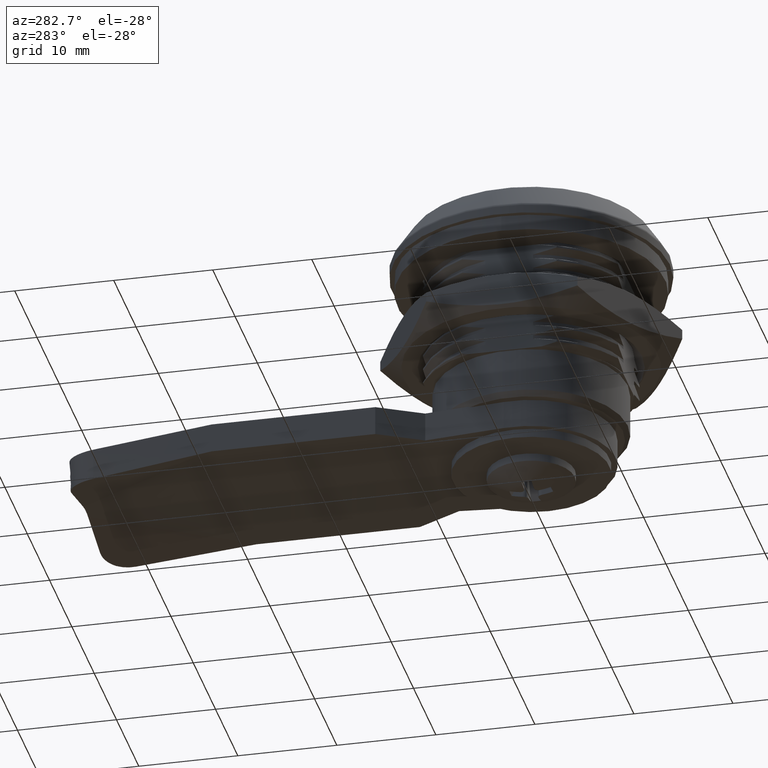
[diagram: clean part render]
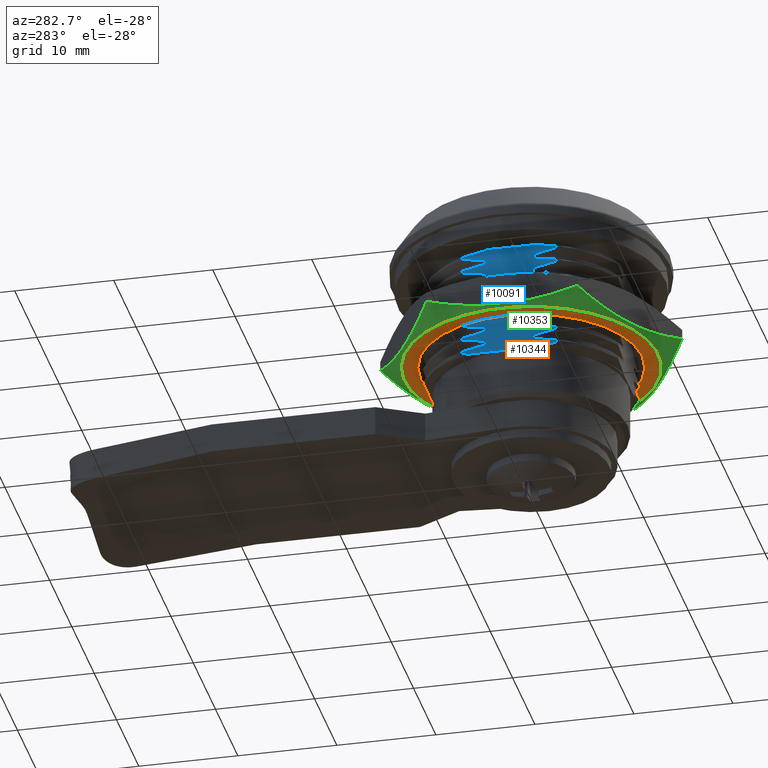
[diagram: same view with three faces highlighted in distinct colors, each labeled with its STEP entity id]
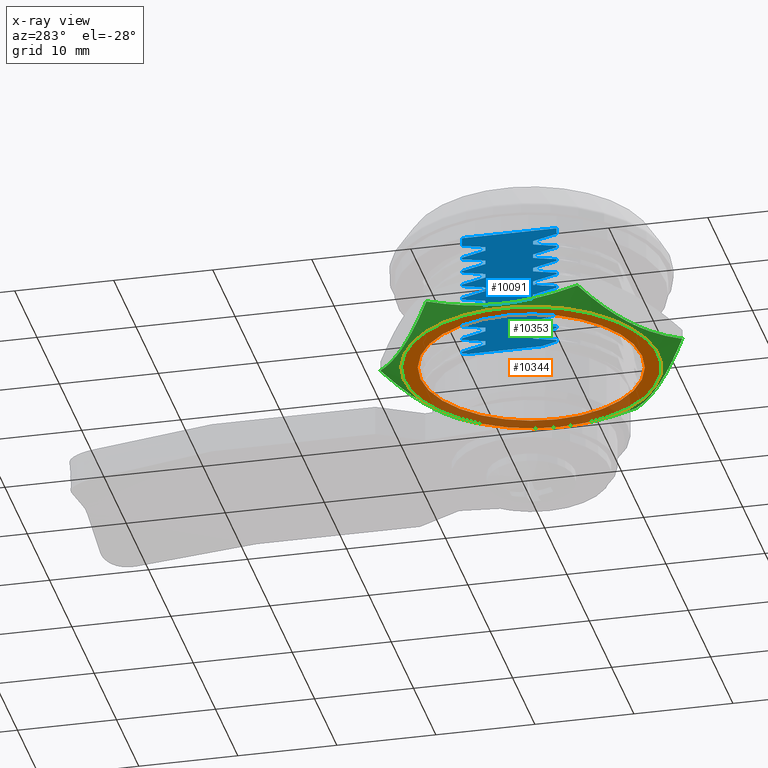
[diagram: x-ray of the same camera — body ghosted, the three highlighted faces saturated]
A machine part, auxiliary view with three faces highlighted in distinct colors.
The next image is the same camera in x-ray (body ghosted, the three faces saturated) — at least one of them is partly hidden behind the body in this view.
Their STEP definitions:

[orange] entity #10344 — the highlighted planar face has unit normal (0, 0, -1).
#471=PLANE('',#10956);
#2656=FACE_BOUND('',#3600,.T.);
#2967=FACE_OUTER_BOUND('',#3599,.T.);
#3599=EDGE_LOOP('',(#8252));
#3600=EDGE_LOOP('',(#8253));
#4028=CIRCLE('',#10953,11.188);
#4030=CIRCLE('',#10957,12.81);
#4706=VERTEX_POINT('',#40143);
#4708=VERTEX_POINT('',#40149);
#5974=EDGE_CURVE('',#4706,#4706,#4028,.T.);
#5976=EDGE_CURVE('',#4708,#4708,#4030,.T.);
#8252=ORIENTED_EDGE('',*,*,#5976,.F.);
#8253=ORIENTED_EDGE('',*,*,#5974,.F.);
#10344=ADVANCED_FACE('',(#2967,#2656),#471,.T.);
#10953=AXIS2_PLACEMENT_3D('',#40144,#12341,#12342);
#10956=AXIS2_PLACEMENT_3D('',#40148,#12347,#12348);
#10957=AXIS2_PLACEMENT_3D('',#40150,#12349,#12350);
#12341=DIRECTION('center_axis',(0.,0.,-1.));
#12342=DIRECTION('ref_axis',(1.,0.,0.));
#12347=DIRECTION('center_axis',(0.,0.,-1.));
#12348=DIRECTION('ref_axis',(-1.,0.,0.));
#12349=DIRECTION('center_axis',(0.,0.,1.));
#12350=DIRECTION('ref_axis',(-1.,0.,0.));
#40143=CARTESIAN_POINT('',(-11.188,1.37013483888606E-15,0.));
#40144=CARTESIAN_POINT('Origin',(0.,0.,0.));
#40148=CARTESIAN_POINT('Origin',(0.,0.,0.));
#40149=CARTESIAN_POINT('',(12.81,1.56877254970776E-15,0.));
#40150=CARTESIAN_POINT('Origin',(0.,0.,0.));

[blue] entity #10091 — the highlighted planar face has unit normal (1, 0, -0).
#398=PLANE('',#10719);
#669=LINE('',#13934,#1504);
#729=LINE('',#14476,#1564);
#730=LINE('',#14490,#1565);
#731=LINE('',#14504,#1566);
#732=LINE('',#14518,#1567);
#733=LINE('',#14532,#1568);
#734=LINE('',#14546,#1569);
#735=LINE('',#14560,#1570);
#736=LINE('',#14574,#1571);
#737=LINE('',#14588,#1572);
#738=LINE('',#14604,#1573);
#739=LINE('',#14621,#1574);
#740=LINE('',#14638,#1575);
#741=LINE('',#14655,#1576);
#742=LINE('',#14672,#1577);
#743=LINE('',#14689,#1578);
#744=LINE('',#14706,#1579);
#745=LINE('',#14723,#1580);
#746=LINE('',#14732,#1581);
#747=LINE('',#14742,#1582);
#748=LINE('',#14752,#1583);
#749=LINE('',#14762,#1584);
#750=LINE('',#14772,#1585);
#751=LINE('',#14782,#1586);
#752=LINE('',#14792,#1587);
#753=LINE('',#14802,#1588);
#754=LINE('',#14812,#1589);
#755=LINE('',#14822,#1590);
#756=LINE('',#14832,#1591);
#757=LINE('',#14842,#1592);
#758=LINE('',#14852,#1593);
#759=LINE('',#14862,#1594);
#760=LINE('',#14872,#1595);
#761=LINE('',#14882,#1596);
#762=LINE('',#14892,#1597);
#763=LINE('',#14898,#1598);
#1504=VECTOR('',#11480,9.56660859448112);
#1564=VECTOR('',#11600,0.641713029902784);
#1565=VECTOR('',#11603,0.187500004096779);
#1566=VECTOR('',#11606,0.187500004096779);
#1567=VECTOR('',#11609,0.187500004096779);
#1568=VECTOR('',#11612,0.187500004096793);
#1569=VECTOR('',#11615,0.187500004096799);
#1570=VECTOR('',#11618,0.187500004096793);
#1571=VECTOR('',#11621,0.187500004096803);
#1572=VECTOR('',#11624,0.187500004096799);
#1573=VECTOR('',#11627,0.375000000000001);
#1574=VECTOR('',#11628,0.375000000000001);
#1575=VECTOR('',#11629,0.374999999999999);
#1576=VECTOR('',#11630,0.375000000000001);
#1577=VECTOR('',#11631,0.375000000000019);
#1578=VECTOR('',#11632,0.375000000000022);
#1579=VECTOR('',#11633,0.37500000000002);
#1580=VECTOR('',#11634,0.37500000000002);
#1581=VECTOR('',#11635,0.858286970097223);
#1582=VECTOR('',#11636,0.37499999999998);
#1583=VECTOR('',#11637,0.187500004096779);
#1584=VECTOR('',#11638,0.37499999999998);
#1585=VECTOR('',#11639,0.18750000409678);
#1586=VECTOR('',#11640,0.374999999999991);
#1587=VECTOR('',#11641,0.18750000409678);
#1588=VECTOR('',#11642,0.374999999999961);
#1589=VECTOR('',#11643,0.187500004096799);
#1590=VECTOR('',#11644,0.375000000000001);
#1591=VECTOR('',#11645,0.187500004096799);
#1592=VECTOR('',#11646,0.374999999999999);
#1593=VECTOR('',#11647,0.187500004096799);
#1594=VECTOR('',#11648,0.375000000000001);
#1595=VECTOR('',#11649,0.187500004096799);
#1596=VECTOR('',#11650,0.374999999999999);
#1597=VECTOR('',#11651,0.187500004096797);
#1598=VECTOR('',#11652,7.41977477942891);
#2372=B_SPLINE_CURVE_WITH_KNOTS('',3,(#14591,#14592,#14593,#14594),
 .UNSPECIFIED.,.F.,.F.,(4,4),(1.73472347597681E-18,0.00153724010418307),
 .UNSPECIFIED.);
#2373=B_SPLINE_CURVE_WITH_KNOTS('',3,(#14596,#14597,#14598,#14599,#14600,
#14601,#14602),.UNSPECIFIED.,.F.,.F.,(4,3,4),(-0.242170769104373,-0.121071173947114,
0.),.UNSPECIFIED.);
#2374=B_SPLINE_CURVE_WITH_KNOTS('',3,(#14605,#14606,#14607,#14608,#14609,
#14610,#14611),.UNSPECIFIED.,.F.,.F.,(4,3,4),(-0.244169262026697,-0.122096874874192,
0.),.UNSPECIFIED.);
#2375=B_SPLINE_CURVE_WITH_KNOTS('',3,(#14613,#14614,#14615,#14616,#14617,
#14618,#14619),.UNSPECIFIED.,.F.,.F.,(4,3,4),(-0.242170769104581,-0.121071173947146,
0.),.UNSPECIFIED.);
#2376=B_SPLINE_CURVE_WITH_KNOTS('',3,(#14622,#14623,#14624,#14625,#14626,
#14627,#14628),.UNSPECIFIED.,.F.,.F.,(4,3,4),(-0.244169262059696,-0.122096895773137,
0.),.UNSPECIFIED.);
#2377=B_SPLINE_CURVE_WITH_KNOTS('',3,(#14630,#14631,#14632,#14633,#14634,
#14635,#14636),.UNSPECIFIED.,.F.,.F.,(4,3,4),(-0.242170769104543,-0.121071173947128,
0.),.UNSPECIFIED.);
#2378=B_SPLINE_CURVE_WITH_KNOTS('',3,(#14639,#14640,#14641,#14642,#14643,
#14644,#14645),.UNSPECIFIED.,.F.,.F.,(4,3,4),(-0.244169262059747,-0.12209689577315,
0.),.UNSPECIFIED.);
#2379=B_SPLINE_CURVE_WITH_KNOTS('',3,(#14647,#14648,#14649,#14650,#14651,
#14652,#14653),.UNSPECIFIED.,.F.,.F.,(4,3,4),(-0.242170769104616,-0.121071173947198,
0.),.UNSPECIFIED.);
#2380=B_SPLINE_CURVE_WITH_KNOTS('',3,(#14656,#14657,#14658,#14659,#14660,
#14661,#14662),.UNSPECIFIED.,.F.,.F.,(4,3,4),(-0.244169262059829,-0.122096895773156,
0.),.UNSPECIFIED.);
#2381=B_SPLINE_CURVE_WITH_KNOTS('',3,(#14664,#14665,#14666,#14667,#14668,
#14669,#14670),.UNSPECIFIED.,.F.,.F.,(4,3,4),(-0.242170769104375,-0.121071173947079,
0.),.UNSPECIFIED.);
#2382=B_SPLINE_CURVE_WITH_KNOTS('',3,(#14673,#14674,#14675,#14676,#14677,
#14678,#14679),.UNSPECIFIED.,.F.,.F.,(4,3,4),(-0.244169262059651,-0.122096895773118,
0.),.UNSPECIFIED.);
#2383=B_SPLINE_CURVE_WITH_KNOTS('',3,(#14681,#14682,#14683,#14684,#14685,
#14686,#14687),.UNSPECIFIED.,.F.,.F.,(4,3,4),(-0.242170769104348,-0.121071173947077,
0.),.UNSPECIFIED.);
#2384=B_SPLINE_CURVE_WITH_KNOTS('',3,(#14690,#14691,#14692,#14693,#14694,
#14695,#14696),.UNSPECIFIED.,.F.,.F.,(4,3,4),(-0.244169262059693,-0.122096895773128,
0.),.UNSPECIFIED.);
#2385=B_SPLINE_CURVE_WITH_KNOTS('',3,(#14698,#14699,#14700,#14701,#14702,
#14703,#14704),.UNSPECIFIED.,.F.,.F.,(4,3,4),(-0.2421707691045,-0.121071173947145,
0.),.UNSPECIFIED.);
#2386=B_SPLINE_CURVE_WITH_KNOTS('',3,(#14707,#14708,#14709,#14710,#14711,
#14712,#14713),.UNSPECIFIED.,.F.,.F.,(4,3,4),(-0.244169262059674,-0.122096895773127,
0.),.UNSPECIFIED.);
#2387=B_SPLINE_CURVE_WITH_KNOTS('',3,(#14715,#14716,#14717,#14718,#14719,
#14720,#14721),.UNSPECIFIED.,.F.,.F.,(4,3,4),(-0.242170769104373,-0.121071173947092,
0.),.UNSPECIFIED.);
#2388=B_SPLINE_CURVE_WITH_KNOTS('',3,(#14724,#14725,#14726,#14727,#14728,
#14729,#14730),.UNSPECIFIED.,.F.,.F.,(4,3,4),(-0.244169262059677,-0.122096895773128,
0.),.UNSPECIFIED.);
#2389=B_SPLINE_CURVE_WITH_KNOTS('',3,(#14734,#14735,#14736,#14737,#14738,
#14739,#14740),.UNSPECIFIED.,.F.,.F.,(4,3,4),(-0.24217076910398,-0.121071173947013,
0.),.UNSPECIFIED.);
#2390=B_SPLINE_CURVE_WITH_KNOTS('',3,(#14744,#14745,#14746,#14747,#14748,
#14749,#14750),.UNSPECIFIED.,.F.,.F.,(4,3,4),(-0.244169262057423,-0.12209689577265,
0.),.UNSPECIFIED.);
#2391=B_SPLINE_CURVE_WITH_KNOTS('',3,(#14754,#14755,#14756,#14757,#14758,
#14759,#14760),.UNSPECIFIED.,.F.,.F.,(4,3,4),(-0.24217076910369,-0.121071173946892,
0.),.UNSPECIFIED.);
#2392=B_SPLINE_CURVE_WITH_KNOTS('',3,(#14764,#14765,#14766,#14767,#14768,
#14769,#14770),.UNSPECIFIED.,.F.,.F.,(4,3,4),(-0.244169262057445,-0.122096895772645,
0.),.UNSPECIFIED.);
#2393=B_SPLINE_CURVE_WITH_KNOTS('',3,(#14774,#14775,#14776,#14777,#14778,
#14779,#14780),.UNSPECIFIED.,.F.,.F.,(4,3,4),(-0.242170769103723,-0.121071173946875,
0.),.UNSPECIFIED.);
#2394=B_SPLINE_CURVE_WITH_KNOTS('',3,(#14784,#14785,#14786,#14787,#14788,
#14789,#14790),.UNSPECIFIED.,.F.,.F.,(4,3,4),(-0.244169262057482,-0.122096895772657,
0.),.UNSPECIFIED.);
#2395=B_SPLINE_CURVE_WITH_KNOTS('',3,(#14794,#14795,#14796,#14797,#14798,
#14799,#14800),.UNSPECIFIED.,.F.,.F.,(4,3,4),(-0.242170769103875,-0.121071173946972,
0.),.UNSPECIFIED.);
#2396=B_SPLINE_CURVE_WITH_KNOTS('',3,(#14804,#14805,#14806,#14807,#14808,
#14809,#14810),.UNSPECIFIED.,.F.,.F.,(4,3,4),(-0.244169262057484,-0.122096895772655,
0.),.UNSPECIFIED.);
#2397=B_SPLINE_CURVE_WITH_KNOTS('',3,(#14814,#14815,#14816,#14817,#14818,
#14819,#14820),.UNSPECIFIED.,.F.,.F.,(4,3,4),(-0.242170769103869,-0.121071173946978,
0.),.UNSPECIFIED.);
#2398=B_SPLINE_CURVE_WITH_KNOTS('',3,(#14824,#14825,#14826,#14827,#14828,
#14829,#14830),.UNSPECIFIED.,.F.,.F.,(4,3,4),(-0.244169262057376,-0.122096895772629,
0.),.UNSPECIFIED.);
#2399=B_SPLINE_CURVE_WITH_KNOTS('',3,(#14834,#14835,#14836,#14837,#14838,
#14839,#14840),.UNSPECIFIED.,.F.,.F.,(4,3,4),(-0.24217076910356,-0.12107117394705,
0.),.UNSPECIFIED.);
#2400=B_SPLINE_CURVE_WITH_KNOTS('',3,(#14844,#14845,#14846,#14847,#14848,
#14849,#14850),.UNSPECIFIED.,.F.,.F.,(4,3,4),(-0.2441692620574,-0.122096895772644,
0.),.UNSPECIFIED.);
#2401=B_SPLINE_CURVE_WITH_KNOTS('',3,(#14854,#14855,#14856,#14857,#14858,
#14859,#14860),.UNSPECIFIED.,.F.,.F.,(4,3,4),(-0.242170769103588,-0.121071173947072,
0.),.UNSPECIFIED.);
#2402=B_SPLINE_CURVE_WITH_KNOTS('',3,(#14864,#14865,#14866,#14867,#14868,
#14869,#14870),.UNSPECIFIED.,.F.,.F.,(4,3,4),(-0.244169262057437,-0.122096895772653,
0.),.UNSPECIFIED.);
#2403=B_SPLINE_CURVE_WITH_KNOTS('',3,(#14874,#14875,#14876,#14877,#14878,
#14879,#14880),.UNSPECIFIED.,.F.,.F.,(4,3,4),(-0.242170769104174,-0.121071173947134,
0.),.UNSPECIFIED.);
#2404=B_SPLINE_CURVE_WITH_KNOTS('',3,(#14884,#14885,#14886,#14887,#14888,
#14889,#14890),.UNSPECIFIED.,.F.,.F.,(4,3,4),(-0.244169262057258,-0.12209689577262,
0.),.UNSPECIFIED.);
#2405=B_SPLINE_CURVE_WITH_KNOTS('',3,(#14894,#14895,#14896,#14897),
 .UNSPECIFIED.,.F.,.F.,(4,4),(4.33680868994202E-18,0.000667363655533002),
 .UNSPECIFIED.);
#2714=FACE_OUTER_BOUND('',#3310,.T.);
#3310=EDGE_LOOP('',(#7004,#7005,#7006,#7007,#7008,#7009,#7010,#7011,#7012,
#7013,#7014,#7015,#7016,#7017,#7018,#7019,#7020,#7021,#7022,#7023,#7024,
#7025,#7026,#7027,#7028,#7029,#7030,#7031,#7032,#7033,#7034,#7035,#7036,
#7037,#7038,#7039,#7040,#7041,#7042,#7043,#7044,#7045,#7046,#7047,#7048,
#7049,#7050,#7051,#7052,#7053,#7054,#7055,#7056,#7057,#7058,#7059,#7060,
#7061,#7062,#7063,#7064,#7065,#7066,#7067,#7068,#7069,#7070,#7071,#7072,
#7073));
#4247=VERTEX_POINT('',#13931);
#4248=VERTEX_POINT('',#13933);
#4362=VERTEX_POINT('',#14470);
#4363=VERTEX_POINT('',#14478);
#4364=VERTEX_POINT('',#14484);
#4365=VERTEX_POINT('',#14492);
#4366=VERTEX_POINT('',#14498);
#4367=VERTEX_POINT('',#14506);
#4368=VERTEX_POINT('',#14512);
#4369=VERTEX_POINT('',#14520);
#4370=VERTEX_POINT('',#14526);
#4371=VERTEX_POINT('',#14534);
#4372=VERTEX_POINT('',#14540);
#4373=VERTEX_POINT('',#14548);
#4374=VERTEX_POINT('',#14554);
#4375=VERTEX_POINT('',#14562);
#4376=VERTEX_POINT('',#14568);
#4377=VERTEX_POINT('',#14576);
#4378=VERTEX_POINT('',#14582);
#4379=VERTEX_POINT('',#14590);
#4380=VERTEX_POINT('',#14595);
#4381=VERTEX_POINT('',#14603);
#4382=VERTEX_POINT('',#14612);
#4383=VERTEX_POINT('',#14620);
#4384=VERTEX_POINT('',#14629);
#4385=VERTEX_POINT('',#14637);
#4386=VERTEX_POINT('',#14646);
#4387=VERTEX_POINT('',#14654);
#4388=VERTEX_POINT('',#14663);
#4389=VERTEX_POINT('',#14671);
#4390=VERTEX_POINT('',#14680);
#4391=VERTEX_POINT('',#14688);
#4392=VERTEX_POINT('',#14697);
#4393=VERTEX_POINT('',#14705);
#4394=VERTEX_POINT('',#14714);
#4395=VERTEX_POINT('',#14722);
#4396=VERTEX_POINT('',#14731);
#4397=VERTEX_POINT('',#14733);
#4398=VERTEX_POINT('',#14741);
#4399=VERTEX_POINT('',#14743);
#4400=VERTEX_POINT('',#14751);
#4401=VERTEX_POINT('',#14753);
#4402=VERTEX_POINT('',#14761);
#4403=VERTEX_POINT('',#14763);
#4404=VERTEX_POINT('',#14771);
#4405=VERTEX_POINT('',#14773);
#4406=VERTEX_POINT('',#14781);
#4407=VERTEX_POINT('',#14783);
#4408=VERTEX_POINT('',#14791);
#4409=VERTEX_POINT('',#14793);
#4410=VERTEX_POINT('',#14801);
#4411=VERTEX_POINT('',#14803);
#4412=VERTEX_POINT('',#14811);
#4413=VERTEX_POINT('',#14813);
#4414=VERTEX_POINT('',#14821);
#4415=VERTEX_POINT('',#14823);
#4416=VERTEX_POINT('',#14831);
#4417=VERTEX_POINT('',#14833);
#4418=VERTEX_POINT('',#14841);
#4419=VERTEX_POINT('',#14843);
#4420=VERTEX_POINT('',#14851);
#4421=VERTEX_POINT('',#14853);
#4422=VERTEX_POINT('',#14861);
#4423=VERTEX_POINT('',#14863);
#4424=VERTEX_POINT('',#14871);
#4425=VERTEX_POINT('',#14873);
#4426=VERTEX_POINT('',#14881);
#4427=VERTEX_POINT('',#14883);
#4428=VERTEX_POINT('',#14891);
#4429=VERTEX_POINT('',#14893);
#5276=EDGE_CURVE('',#4248,#4247,#669,.T.);
#5404=EDGE_CURVE('',#4362,#4248,#729,.T.);
#5407=EDGE_CURVE('',#4363,#4364,#730,.T.);
#5410=EDGE_CURVE('',#4365,#4366,#731,.T.);
#5413=EDGE_CURVE('',#4367,#4368,#732,.T.);
#5416=EDGE_CURVE('',#4369,#4370,#733,.T.);
#5419=EDGE_CURVE('',#4371,#4372,#734,.T.);
#5422=EDGE_CURVE('',#4373,#4374,#735,.T.);
#5425=EDGE_CURVE('',#4375,#4376,#736,.T.);
#5428=EDGE_CURVE('',#4377,#4378,#737,.T.);
#5429=EDGE_CURVE('',#4377,#4379,#2372,.T.);
#5430=EDGE_CURVE('',#4380,#4378,#2373,.T.);
#5431=EDGE_CURVE('',#4381,#4380,#738,.T.);
#5432=EDGE_CURVE('',#4375,#4381,#2374,.T.);
#5433=EDGE_CURVE('',#4382,#4376,#2375,.T.);
#5434=EDGE_CURVE('',#4383,#4382,#739,.T.);
#5435=EDGE_CURVE('',#4373,#4383,#2376,.T.);
#5436=EDGE_CURVE('',#4384,#4374,#2377,.T.);
#5437=EDGE_CURVE('',#4385,#4384,#740,.T.);
#5438=EDGE_CURVE('',#4371,#4385,#2378,.T.);
#5439=EDGE_CURVE('',#4386,#4372,#2379,.T.);
#5440=EDGE_CURVE('',#4387,#4386,#741,.T.);
#5441=EDGE_CURVE('',#4369,#4387,#2380,.T.);
#5442=EDGE_CURVE('',#4388,#4370,#2381,.T.);
#5443=EDGE_CURVE('',#4389,#4388,#742,.T.);
#5444=EDGE_CURVE('',#4367,#4389,#2382,.T.);
#5445=EDGE_CURVE('',#4390,#4368,#2383,.T.);
#5446=EDGE_CURVE('',#4391,#4390,#743,.T.);
#5447=EDGE_CURVE('',#4365,#4391,#2384,.T.);
#5448=EDGE_CURVE('',#4392,#4366,#2385,.T.);
#5449=EDGE_CURVE('',#4393,#4392,#744,.T.);
#5450=EDGE_CURVE('',#4363,#4393,#2386,.T.);
#5451=EDGE_CURVE('',#4394,#4364,#2387,.T.);
#5452=EDGE_CURVE('',#4395,#4394,#745,.T.);
#5453=EDGE_CURVE('',#4362,#4395,#2388,.T.);
#5454=EDGE_CURVE('',#4396,#4247,#746,.T.);
#5455=EDGE_CURVE('',#4397,#4396,#2389,.T.);
#5456=EDGE_CURVE('',#4398,#4397,#747,.T.);
#5457=EDGE_CURVE('',#4399,#4398,#2390,.T.);
#5458=EDGE_CURVE('',#4400,#4399,#748,.T.);
#5459=EDGE_CURVE('',#4401,#4400,#2391,.T.);
#5460=EDGE_CURVE('',#4402,#4401,#749,.T.);
#5461=EDGE_CURVE('',#4403,#4402,#2392,.T.);
#5462=EDGE_CURVE('',#4404,#4403,#750,.T.);
#5463=EDGE_CURVE('',#4405,#4404,#2393,.T.);
#5464=EDGE_CURVE('',#4406,#4405,#751,.T.);
#5465=EDGE_CURVE('',#4407,#4406,#2394,.T.);
#5466=EDGE_CURVE('',#4408,#4407,#752,.T.);
#5467=EDGE_CURVE('',#4409,#4408,#2395,.T.);
#5468=EDGE_CURVE('',#4410,#4409,#753,.T.);
#5469=EDGE_CURVE('',#4411,#4410,#2396,.T.);
#5470=EDGE_CURVE('',#4412,#4411,#754,.T.);
#5471=EDGE_CURVE('',#4413,#4412,#2397,.T.);
#5472=EDGE_CURVE('',#4414,#4413,#755,.T.);
#5473=EDGE_CURVE('',#4415,#4414,#2398,.T.);
#5474=EDGE_CURVE('',#4416,#4415,#756,.T.);
#5475=EDGE_CURVE('',#4417,#4416,#2399,.T.);
#5476=EDGE_CURVE('',#4418,#4417,#757,.T.);
#5477=EDGE_CURVE('',#4419,#4418,#2400,.T.);
#5478=EDGE_CURVE('',#4420,#4419,#758,.T.);
#5479=EDGE_CURVE('',#4421,#4420,#2401,.T.);
#5480=EDGE_CURVE('',#4422,#4421,#759,.T.);
#5481=EDGE_CURVE('',#4423,#4422,#2402,.T.);
#5482=EDGE_CURVE('',#4424,#4423,#760,.T.);
#5483=EDGE_CURVE('',#4425,#4424,#2403,.T.);
#5484=EDGE_CURVE('',#4426,#4425,#761,.T.);
#5485=EDGE_CURVE('',#4427,#4426,#2404,.T.);
#5486=EDGE_CURVE('',#4428,#4427,#762,.T.);
#5487=EDGE_CURVE('',#4429,#4428,#2405,.T.);
#5488=EDGE_CURVE('',#4379,#4429,#763,.T.);
#7004=ORIENTED_EDGE('',*,*,#5429,.F.);
#7005=ORIENTED_EDGE('',*,*,#5428,.T.);
#7006=ORIENTED_EDGE('',*,*,#5430,.F.);
#7007=ORIENTED_EDGE('',*,*,#5431,.F.);
#7008=ORIENTED_EDGE('',*,*,#5432,.F.);
#7009=ORIENTED_EDGE('',*,*,#5425,.T.);
#7010=ORIENTED_EDGE('',*,*,#5433,.F.);
#7011=ORIENTED_EDGE('',*,*,#5434,.F.);
#7012=ORIENTED_EDGE('',*,*,#5435,.F.);
#7013=ORIENTED_EDGE('',*,*,#5422,.T.);
#7014=ORIENTED_EDGE('',*,*,#5436,.F.);
#7015=ORIENTED_EDGE('',*,*,#5437,.F.);
#7016=ORIENTED_EDGE('',*,*,#5438,.F.);
#7017=ORIENTED_EDGE('',*,*,#5419,.T.);
#7018=ORIENTED_EDGE('',*,*,#5439,.F.);
#7019=ORIENTED_EDGE('',*,*,#5440,.F.);
#7020=ORIENTED_EDGE('',*,*,#5441,.F.);
#7021=ORIENTED_EDGE('',*,*,#5416,.T.);
#7022=ORIENTED_EDGE('',*,*,#5442,.F.);
#7023=ORIENTED_EDGE('',*,*,#5443,.F.);
#7024=ORIENTED_EDGE('',*,*,#5444,.F.);
#7025=ORIENTED_EDGE('',*,*,#5413,.T.);
#7026=ORIENTED_EDGE('',*,*,#5445,.F.);
#7027=ORIENTED_EDGE('',*,*,#5446,.F.);
#7028=ORIENTED_EDGE('',*,*,#5447,.F.);
#7029=ORIENTED_EDGE('',*,*,#5410,.T.);
#7030=ORIENTED_EDGE('',*,*,#5448,.F.);
#7031=ORIENTED_EDGE('',*,*,#5449,.F.);
#7032=ORIENTED_EDGE('',*,*,#5450,.F.);
#7033=ORIENTED_EDGE('',*,*,#5407,.T.);
#7034=ORIENTED_EDGE('',*,*,#5451,.F.);
#7035=ORIENTED_EDGE('',*,*,#5452,.F.);
#7036=ORIENTED_EDGE('',*,*,#5453,.F.);
#7037=ORIENTED_EDGE('',*,*,#5404,.T.);
#7038=ORIENTED_EDGE('',*,*,#5276,.T.);
#7039=ORIENTED_EDGE('',*,*,#5454,.F.);
#7040=ORIENTED_EDGE('',*,*,#5455,.F.);
#7041=ORIENTED_EDGE('',*,*,#5456,.F.);
#7042=ORIENTED_EDGE('',*,*,#5457,.F.);
#7043=ORIENTED_EDGE('',*,*,#5458,.F.);
#7044=ORIENTED_EDGE('',*,*,#5459,.F.);
#7045=ORIENTED_EDGE('',*,*,#5460,.F.);
#7046=ORIENTED_EDGE('',*,*,#5461,.F.);
#7047=ORIENTED_EDGE('',*,*,#5462,.F.);
#7048=ORIENTED_EDGE('',*,*,#5463,.F.);
#7049=ORIENTED_EDGE('',*,*,#5464,.F.);
#7050=ORIENTED_EDGE('',*,*,#5465,.F.);
#7051=ORIENTED_EDGE('',*,*,#5466,.F.);
#7052=ORIENTED_EDGE('',*,*,#5467,.F.);
#7053=ORIENTED_EDGE('',*,*,#5468,.F.);
#7054=ORIENTED_EDGE('',*,*,#5469,.F.);
#7055=ORIENTED_EDGE('',*,*,#5470,.F.);
#7056=ORIENTED_EDGE('',*,*,#5471,.F.);
#7057=ORIENTED_EDGE('',*,*,#5472,.F.);
#7058=ORIENTED_EDGE('',*,*,#5473,.F.);
#7059=ORIENTED_EDGE('',*,*,#5474,.F.);
#7060=ORIENTED_EDGE('',*,*,#5475,.F.);
#7061=ORIENTED_EDGE('',*,*,#5476,.F.);
#7062=ORIENTED_EDGE('',*,*,#5477,.F.);
#7063=ORIENTED_EDGE('',*,*,#5478,.F.);
#7064=ORIENTED_EDGE('',*,*,#5479,.F.);
#7065=ORIENTED_EDGE('',*,*,#5480,.F.);
#7066=ORIENTED_EDGE('',*,*,#5481,.F.);
#7067=ORIENTED_EDGE('',*,*,#5482,.F.);
#7068=ORIENTED_EDGE('',*,*,#5483,.F.);
#7069=ORIENTED_EDGE('',*,*,#5484,.F.);
#7070=ORIENTED_EDGE('',*,*,#5485,.F.);
#7071=ORIENTED_EDGE('',*,*,#5486,.F.);
#7072=ORIENTED_EDGE('',*,*,#5487,.F.);
#7073=ORIENTED_EDGE('',*,*,#5488,.F.);
#10091=ADVANCED_FACE('',(#2714),#398,.F.);
#10719=AXIS2_PLACEMENT_3D('',#14589,#11625,#11626);
#11480=DIRECTION('',(0.,0.,1.));
#11600=DIRECTION('',(0.,-1.,0.));
#11603=DIRECTION('',(0.,-1.,0.));
#11606=DIRECTION('',(0.,-1.,0.));
#11609=DIRECTION('',(0.,-1.,0.));
#11612=DIRECTION('',(0.,-1.,0.));
#11615=DIRECTION('',(0.,-1.,0.));
#11618=DIRECTION('',(0.,-1.,0.));
#11621=DIRECTION('',(0.,-1.,0.));
#11624=DIRECTION('',(0.,-1.,0.));
#11625=DIRECTION('center_axis',(1.,0.,0.));
#11626=DIRECTION('ref_axis',(0.,0.,-1.));
#11627=DIRECTION('',(-3.10862446895036E-13,1.,1.29081930329748E-12));
#11628=DIRECTION('',(-3.55271367880045E-13,1.,1.47659662275144E-12));
#11629=DIRECTION('',(-3.55271367880039E-13,1.,1.47659662275141E-12));
#11630=DIRECTION('',(-3.878379099357E-13,1.,1.56763491077063E-12));
#11631=DIRECTION('',(-3.61192557344707E-13,1.,1.47511632538525E-12));
#11632=DIRECTION('',(-3.64153152077038E-13,1.,1.47511632538524E-12));
#11633=DIRECTION('',(-3.64153152077039E-13,1.,1.52396613846875E-12));
#11634=DIRECTION('',(-3.52310773147702E-13,1.,1.47585647406831E-12));
#11635=DIRECTION('',(0.,-1.,0.));
#11636=DIRECTION('',(3.31586610021391E-13,-1.,1.33966911638107E-12));
#11637=DIRECTION('',(0.,-1.,0.));
#11638=DIRECTION('',(3.3158661002139E-13,-1.,1.33892896769798E-12));
#11639=DIRECTION('',(0.,-1.,0.));
#11640=DIRECTION('',(3.16783636359718E-13,-1.,1.29007915461446E-12));
#11641=DIRECTION('',(0.,-1.,0.));
#11642=DIRECTION('',(3.16783636359723E-13,-1.,1.29007915461448E-12));
#11643=DIRECTION('',(0.,-1.,0.));
#11644=DIRECTION('',(3.37507799486059E-13,-1.,1.38555833473224E-12));
#11645=DIRECTION('',(0.,-1.,0.));
#11646=DIRECTION('',(5.29946457087781E-13,-1.,2.21600515715198E-12));
#11647=DIRECTION('',(0.,-1.,0.));
#11648=DIRECTION('',(5.29946457087781E-13,-1.,2.21600515715198E-12));
#11649=DIRECTION('',(0.,-1.,0.));
#11650=DIRECTION('',(3.61192557344732E-13,-1.,1.4773367714346E-12));
#11651=DIRECTION('',(0.,-1.,0.));
#11652=DIRECTION('',(0.,0.,1.));
#13931=CARTESIAN_POINT('',(-9.85,4.1,4.78330429724056));
#13933=CARTESIAN_POINT('',(-9.85,4.1,-4.78330429724056));
#13934=CARTESIAN_POINT('',(-9.85,4.1,-4.54972526643094));
#14470=CARTESIAN_POINT('',(-9.85,4.74171302990278,-4.78330429724057));
#14476=CARTESIAN_POINT('',(-9.85,46.1,-4.78330429724057));
#14478=CARTESIAN_POINT('',(-9.85,6.24171302990278,-4.78330429724058));
#14484=CARTESIAN_POINT('',(-9.85,6.054213025806,-4.78330429724057));
#14490=CARTESIAN_POINT('',(-9.85,46.1,-4.78330429724057));
#14492=CARTESIAN_POINT('',(-9.85,7.74171302990278,-4.78330429724056));
#14498=CARTESIAN_POINT('',(-9.85,7.554213025806,-4.78330429724058));
#14504=CARTESIAN_POINT('',(-9.85,46.1,-4.78330429724057));
#14506=CARTESIAN_POINT('',(-9.85,9.24171302990278,-4.78330429724057));
#14512=CARTESIAN_POINT('',(-9.85,9.054213025806,-4.78330429724056));
#14518=CARTESIAN_POINT('',(-9.85,46.1,-4.78330429724057));
#14520=CARTESIAN_POINT('',(-9.85000000000001,10.7417130299028,-4.78330429724055));
#14526=CARTESIAN_POINT('',(-9.85,10.554213025806,-4.78330429724057));
#14532=CARTESIAN_POINT('',(-9.85,46.1,-4.78330429724057));
#14534=CARTESIAN_POINT('',(-9.84999999999998,12.2417130299028,-4.7833042972406));
#14540=CARTESIAN_POINT('',(-9.84999999999999,12.054213025806,-4.78330429724058));
#14546=CARTESIAN_POINT('',(-9.85,46.1,-4.78330429724057));
#14548=CARTESIAN_POINT('',(-9.84999999999998,13.7417130299028,-4.7833042972406));
#14554=CARTESIAN_POINT('',(-9.84999999999998,13.554213025806,-4.7833042972406));
#14560=CARTESIAN_POINT('',(-9.85,46.1,-4.78330429724057));
#14562=CARTESIAN_POINT('',(-9.85,15.2417130299028,-4.78330429724057));
#14568=CARTESIAN_POINT('',(-9.84999999999998,15.054213025806,-4.7833042972406));
#14574=CARTESIAN_POINT('',(-9.85,46.1,-4.78330429724057));
#14576=CARTESIAN_POINT('',(-9.85,16.7417130299028,-4.78330429724057));
#14582=CARTESIAN_POINT('',(-9.85,16.554213025806,-4.78330429724057));
#14588=CARTESIAN_POINT('',(-9.85,46.1,-4.78330429724057));
#14589=CARTESIAN_POINT('Origin',(-9.85,46.1,-4.54972526643094));
#14590=CARTESIAN_POINT('',(-9.85,17.1,-3.28861438186242));
#14591=CARTESIAN_POINT('Ctrl Pts',(-9.85,16.7417130299028,-4.78330429724057));
#14592=CARTESIAN_POINT('Ctrl Pts',(-9.85,16.8763532749028,-4.28883869229216));
#14593=CARTESIAN_POINT('Ctrl Pts',(-9.84999999999985,16.9970053317057,-3.79063633683172));
#14594=CARTESIAN_POINT('Ctrl Pts',(-9.85,17.1,-3.28861438186242));
#14595=CARTESIAN_POINT('',(-9.84999999999999,16.1375125126172,-2.39970741716342));
#14596=CARTESIAN_POINT('Ctrl Pts',(-9.85,16.1375125126172,-2.39970741716342));
#14597=CARTESIAN_POINT('Ctrl Pts',(-9.85,16.1830351583443,-2.80093254964856));
#14598=CARTESIAN_POINT('Ctrl Pts',(-9.85,16.2414542491001,-3.19981690211494));
#14599=CARTESIAN_POINT('Ctrl Pts',(-9.85,16.3114909637644,-3.59743546849656));
#14600=CARTESIAN_POINT('Ctrl Pts',(-9.85,16.381511241312,-3.99496071664027));
#14601=CARTESIAN_POINT('Ctrl Pts',(-9.85,16.4629641043915,-4.39018491684837));
#14602=CARTESIAN_POINT('Ctrl Pts',(-9.85,16.554213025806,-4.78330429724057));
#14603=CARTESIAN_POINT('',(-9.84999999999988,15.7625125126172,-2.3997074171639));
#14604=CARTESIAN_POINT('',(-9.84999999999988,15.7625125126172,-2.3997074171639));
#14605=CARTESIAN_POINT('Ctrl Pts',(-9.85,15.2417130299028,-4.78330429724056));
#14606=CARTESIAN_POINT('Ctrl Pts',(-9.85,15.3485744009403,-4.39085646356604));
#14607=CARTESIAN_POINT('Ctrl Pts',(-9.85,15.4467000905209,-3.99573544781436));
#14608=CARTESIAN_POINT('Ctrl Pts',(-9.85,15.5341249006205,-3.59841331116905));
#14609=CARTESIAN_POINT('Ctrl Pts',(-9.85,15.6215672481376,-3.20101147170044));
#14610=CARTESIAN_POINT('Ctrl Pts',(-9.85,15.6982666269576,-2.80159420069416));
#14611=CARTESIAN_POINT('Ctrl Pts',(-9.85,15.7625125126171,-2.39970741716389));
#14612=CARTESIAN_POINT('',(-9.85,14.6375125126172,-2.39970741716339));
#14613=CARTESIAN_POINT('Ctrl Pts',(-9.85,14.6375125126172,-2.39970741716339));
#14614=CARTESIAN_POINT('Ctrl Pts',(-9.85,14.6830351583442,-2.80093254964837));
#14615=CARTESIAN_POINT('Ctrl Pts',(-9.85,14.7414542491001,-3.19981690211455));
#14616=CARTESIAN_POINT('Ctrl Pts',(-9.85,14.8114909637645,-3.5974354684966));
#14617=CARTESIAN_POINT('Ctrl Pts',(-9.85,14.881511241312,-3.99496071664026));
#14618=CARTESIAN_POINT('Ctrl Pts',(-9.85,14.9629641043915,-4.39018491684829));
#14619=CARTESIAN_POINT('Ctrl Pts',(-9.85,15.054213025806,-4.7833042972406));
#14620=CARTESIAN_POINT('',(-9.84999999999986,14.2625125126172,-2.39970741716395));
#14621=CARTESIAN_POINT('',(-9.84999999999987,14.2625125126172,-2.39970741716395));
#14622=CARTESIAN_POINT('Ctrl Pts',(-9.85,13.7417130299028,-4.78330429724059));
#14623=CARTESIAN_POINT('Ctrl Pts',(-9.85,13.8485743826755,-4.39085653064326));
#14624=CARTESIAN_POINT('Ctrl Pts',(-9.85,13.9467000569682,-3.99573558291697));
#14625=CARTESIAN_POINT('Ctrl Pts',(-9.85,14.0341248557609,-3.59841351504245));
#14626=CARTESIAN_POINT('Ctrl Pts',(-9.85,14.1215672218827,-3.20101160840812));
#14627=CARTESIAN_POINT('Ctrl Pts',(-9.85,14.1982666159608,-2.80159426948395));
#14628=CARTESIAN_POINT('Ctrl Pts',(-9.85,14.2625125126171,-2.39970741716396));
#14629=CARTESIAN_POINT('',(-9.85,13.1375125126172,-2.39970741716339));
#14630=CARTESIAN_POINT('Ctrl Pts',(-9.85,13.1375125126172,-2.39970741716339));
#14631=CARTESIAN_POINT('Ctrl Pts',(-9.85,13.1830351583443,-2.80093254964836));
#14632=CARTESIAN_POINT('Ctrl Pts',(-9.85,13.2414542491001,-3.19981690211453));
#14633=CARTESIAN_POINT('Ctrl Pts',(-9.85,13.3114909637645,-3.5974354684966));
#14634=CARTESIAN_POINT('Ctrl Pts',(-9.85,13.381511241312,-3.99496071664029));
#14635=CARTESIAN_POINT('Ctrl Pts',(-9.85,13.4629641043915,-4.39018491684835));
#14636=CARTESIAN_POINT('Ctrl Pts',(-9.85,13.554213025806,-4.7833042972406));
#14637=CARTESIAN_POINT('',(-9.84999999999986,12.7625125126172,-2.39970741716395));
#14638=CARTESIAN_POINT('',(-9.84999999999987,12.7625125126172,-2.39970741716395));
#14639=CARTESIAN_POINT('Ctrl Pts',(-9.85,12.2417130299028,-4.78330429724059));
#14640=CARTESIAN_POINT('Ctrl Pts',(-9.85,12.3485743826755,-4.39085653064322));
#14641=CARTESIAN_POINT('Ctrl Pts',(-9.85,12.4467000569682,-3.99573558291695));
#14642=CARTESIAN_POINT('Ctrl Pts',(-9.85,12.5341248557609,-3.59841351504245));
#14643=CARTESIAN_POINT('Ctrl Pts',(-9.85,12.6215672218827,-3.20101160840822));
#14644=CARTESIAN_POINT('Ctrl Pts',(-9.85,12.6982666159608,-2.80159426948398));
#14645=CARTESIAN_POINT('Ctrl Pts',(-9.85,12.7625125126171,-2.39970741716393));
#14646=CARTESIAN_POINT('',(-9.85,11.6375125126172,-2.39970741716337));
#14647=CARTESIAN_POINT('Ctrl Pts',(-9.85,11.6375125126172,-2.39970741716337));
#14648=CARTESIAN_POINT('Ctrl Pts',(-9.85,11.6830351583443,-2.80093254964846));
#14649=CARTESIAN_POINT('Ctrl Pts',(-9.85,11.7414542491001,-3.19981690211478));
#14650=CARTESIAN_POINT('Ctrl Pts',(-9.85,11.8114909637645,-3.59743546849655));
#14651=CARTESIAN_POINT('Ctrl Pts',(-9.85,11.881511241312,-3.99496071664015));
#14652=CARTESIAN_POINT('Ctrl Pts',(-9.85,11.9629641043915,-4.39018491684811));
#14653=CARTESIAN_POINT('Ctrl Pts',(-9.85,12.054213025806,-4.78330429724058));
#14654=CARTESIAN_POINT('',(-9.84999999999986,11.2625125126172,-2.39970741716396));
#14655=CARTESIAN_POINT('',(-9.84999999999986,11.2625125126172,-2.39970741716396));
#14656=CARTESIAN_POINT('Ctrl Pts',(-9.85,10.7417130299028,-4.78330429724055));
#14657=CARTESIAN_POINT('Ctrl Pts',(-9.85,10.8485743826754,-4.39085653064368));
#14658=CARTESIAN_POINT('Ctrl Pts',(-9.85,10.9467000569682,-3.99573558291715));
#14659=CARTESIAN_POINT('Ctrl Pts',(-9.85,11.034124855761,-3.59841351504246));
#14660=CARTESIAN_POINT('Ctrl Pts',(-9.85,11.1215672218827,-3.20101160840827));
#14661=CARTESIAN_POINT('Ctrl Pts',(-9.85,11.1982666159608,-2.801594269484));
#14662=CARTESIAN_POINT('Ctrl Pts',(-9.85,11.2625125126171,-2.39970741716394));
#14663=CARTESIAN_POINT('',(-9.85,10.1375125126172,-2.39970741716338));
#14664=CARTESIAN_POINT('Ctrl Pts',(-9.85,10.1375125126172,-2.39970741716338));
#14665=CARTESIAN_POINT('Ctrl Pts',(-9.85,10.1830351583443,-2.80093254964841));
#14666=CARTESIAN_POINT('Ctrl Pts',(-9.85,10.2414542491001,-3.19981690211464));
#14667=CARTESIAN_POINT('Ctrl Pts',(-9.85,10.3114909637644,-3.59743546849656));
#14668=CARTESIAN_POINT('Ctrl Pts',(-9.85,10.381511241312,-3.99496071664032));
#14669=CARTESIAN_POINT('Ctrl Pts',(-9.85,10.4629641043916,-4.39018491684848));
#14670=CARTESIAN_POINT('Ctrl Pts',(-9.85,10.554213025806,-4.78330429724057));
#14671=CARTESIAN_POINT('',(-9.84999999999987,9.76251251261718,-2.39970741716393));
#14672=CARTESIAN_POINT('',(-9.84999999999986,9.76251251261717,-2.39970741716393));
#14673=CARTESIAN_POINT('Ctrl Pts',(-9.85,9.24171302990278,-4.78330429724057));
#14674=CARTESIAN_POINT('Ctrl Pts',(-9.85,9.34857438267538,-4.39085653064371));
#14675=CARTESIAN_POINT('Ctrl Pts',(-9.85,9.44670005696819,-3.99573558291717));
#14676=CARTESIAN_POINT('Ctrl Pts',(-9.85,9.53412485576094,-3.59841351504248));
#14677=CARTESIAN_POINT('Ctrl Pts',(-9.85,9.62156722188277,-3.20101160840796));
#14678=CARTESIAN_POINT('Ctrl Pts',(-9.85,9.69826661596081,-2.80159426948386));
#14679=CARTESIAN_POINT('Ctrl Pts',(-9.85,9.7625125126171,-2.39970741716393));
#14680=CARTESIAN_POINT('',(-9.85,8.63751251261719,-2.39970741716339));
#14681=CARTESIAN_POINT('Ctrl Pts',(-9.85,8.63751251261719,-2.39970741716339));
#14682=CARTESIAN_POINT('Ctrl Pts',(-9.85,8.68303515834426,-2.80093254964845));
#14683=CARTESIAN_POINT('Ctrl Pts',(-9.85,8.74145424910011,-3.19981690211473));
#14684=CARTESIAN_POINT('Ctrl Pts',(-9.85,8.81149096376447,-3.59743546849657));
#14685=CARTESIAN_POINT('Ctrl Pts',(-9.85,8.88151124131205,-3.99496071664032));
#14686=CARTESIAN_POINT('Ctrl Pts',(-9.85,8.96296410439157,-4.39018491684848));
#14687=CARTESIAN_POINT('Ctrl Pts',(-9.85,9.054213025806,-4.78330429724056));
#14688=CARTESIAN_POINT('',(-9.84999999999986,8.26251251261717,-2.39970741716394));
#14689=CARTESIAN_POINT('',(-9.84999999999987,8.26251251261717,-2.39970741716394));
#14690=CARTESIAN_POINT('Ctrl Pts',(-9.85,7.74171302990278,-4.78330429724057));
#14691=CARTESIAN_POINT('Ctrl Pts',(-9.85,7.84857438267538,-4.3908565306437));
#14692=CARTESIAN_POINT('Ctrl Pts',(-9.85,7.94670005696818,-3.99573558291717));
#14693=CARTESIAN_POINT('Ctrl Pts',(-9.85,8.03412485576094,-3.59841351504248));
#14694=CARTESIAN_POINT('Ctrl Pts',(-9.85,8.12156722188275,-3.20101160840804));
#14695=CARTESIAN_POINT('Ctrl Pts',(-9.85,8.1982666159608,-2.8015942694839));
#14696=CARTESIAN_POINT('Ctrl Pts',(-9.85,8.2625125126171,-2.39970741716393));
#14697=CARTESIAN_POINT('',(-9.85,7.13751251261719,-2.39970741716338));
#14698=CARTESIAN_POINT('Ctrl Pts',(-9.85,7.13751251261719,-2.39970741716337));
#14699=CARTESIAN_POINT('Ctrl Pts',(-9.85,7.18303515834426,-2.80093254964845));
#14700=CARTESIAN_POINT('Ctrl Pts',(-9.85,7.24145424910011,-3.19981690211475));
#14701=CARTESIAN_POINT('Ctrl Pts',(-9.85,7.31149096376448,-3.59743546849655));
#14702=CARTESIAN_POINT('Ctrl Pts',(-9.85,7.38151124131203,-3.99496071664022));
#14703=CARTESIAN_POINT('Ctrl Pts',(-9.85,7.46296410439152,-4.39018491684827));
#14704=CARTESIAN_POINT('Ctrl Pts',(-9.85,7.554213025806,-4.78330429724057));
#14705=CARTESIAN_POINT('',(-9.84999999999987,6.76251251261717,-2.39970741716395));
#14706=CARTESIAN_POINT('',(-9.84999999999986,6.76251251261717,-2.39970741716395));
#14707=CARTESIAN_POINT('Ctrl Pts',(-9.85,6.24171302990277,-4.78330429724057));
#14708=CARTESIAN_POINT('Ctrl Pts',(-9.85,6.34857438267542,-4.39085653064354));
#14709=CARTESIAN_POINT('Ctrl Pts',(-9.85,6.4467000569682,-3.99573558291709));
#14710=CARTESIAN_POINT('Ctrl Pts',(-9.85,6.53412485576093,-3.59841351504247));
#14711=CARTESIAN_POINT('Ctrl Pts',(-9.85,6.62156722188275,-3.20101160840804));
#14712=CARTESIAN_POINT('Ctrl Pts',(-9.85,6.6982666159608,-2.8015942694839));
#14713=CARTESIAN_POINT('Ctrl Pts',(-9.85,6.7625125126171,-2.39970741716394));
#14714=CARTESIAN_POINT('',(-9.85,5.63751251261719,-2.39970741716338));
#14715=CARTESIAN_POINT('Ctrl Pts',(-9.85,5.63751251261719,-2.39970741716339));
#14716=CARTESIAN_POINT('Ctrl Pts',(-9.85,5.68303515834426,-2.80093254964846));
#14717=CARTESIAN_POINT('Ctrl Pts',(-9.85,5.74145424910011,-3.19981690211475));
#14718=CARTESIAN_POINT('Ctrl Pts',(-9.85,5.81149096376446,-3.59743546849656));
#14719=CARTESIAN_POINT('Ctrl Pts',(-9.85,5.88151124131204,-3.9949607166403));
#14720=CARTESIAN_POINT('Ctrl Pts',(-9.85,5.96296410439156,-4.39018491684844));
#14721=CARTESIAN_POINT('Ctrl Pts',(-9.85,6.054213025806,-4.78330429724057));
#14722=CARTESIAN_POINT('',(-9.84999999999987,5.26251251261717,-2.39970741716394));
#14723=CARTESIAN_POINT('',(-9.84999999999986,5.26251251261717,-2.39970741716394));
#14724=CARTESIAN_POINT('Ctrl Pts',(-9.85,4.74171302990277,-4.78330429724057));
#14725=CARTESIAN_POINT('Ctrl Pts',(-9.85,4.84857438267542,-4.39085653064354));
#14726=CARTESIAN_POINT('Ctrl Pts',(-9.85,4.94670005696819,-3.99573558291709));
#14727=CARTESIAN_POINT('Ctrl Pts',(-9.85,5.03412485576094,-3.59841351504247));
#14728=CARTESIAN_POINT('Ctrl Pts',(-9.85,5.12156722188275,-3.20101160840804));
#14729=CARTESIAN_POINT('Ctrl Pts',(-9.85,5.1982666159608,-2.80159426948389));
#14730=CARTESIAN_POINT('Ctrl Pts',(-9.85,5.2625125126171,-2.39970741716393));
#14731=CARTESIAN_POINT('',(-9.85000000000001,4.95828697009722,4.78330429724054));
#14732=CARTESIAN_POINT('',(-9.85,17.1,4.78330429724056));
#14733=CARTESIAN_POINT('',(-9.84999999999996,5.37498748328604,2.39970741716353));
#14734=CARTESIAN_POINT('Ctrl Pts',(-9.85,5.37498748328602,2.39970741716352));
#14735=CARTESIAN_POINT('Ctrl Pts',(-9.85,5.32946483755891,2.80093254964885));
#14736=CARTESIAN_POINT('Ctrl Pts',(-9.85,5.27104574680299,3.19981690211545));
#14737=CARTESIAN_POINT('Ctrl Pts',(-9.85,5.20100903213875,3.59743546849658));
#14738=CARTESIAN_POINT('Ctrl Pts',(-9.85,5.13098875459115,3.99496071664041));
#14739=CARTESIAN_POINT('Ctrl Pts',(-9.85,5.04953589151161,4.39018491684867));
#14740=CARTESIAN_POINT('Ctrl Pts',(-9.85,4.95828697009722,4.78330429724054));
#14741=CARTESIAN_POINT('',(-9.85000000000009,5.74998748328602,2.39970741716303));
#14742=CARTESIAN_POINT('',(-9.85000000000009,5.74998748328602,2.39970741716303));
#14743=CARTESIAN_POINT('',(-9.85000000000001,6.27078696600044,4.78330429724054));
#14744=CARTESIAN_POINT('Ctrl Pts',(-9.85,6.27078696600043,4.78330429724054));
#14745=CARTESIAN_POINT('Ctrl Pts',(-9.85,6.16392561322789,4.39085653064387));
#14746=CARTESIAN_POINT('Ctrl Pts',(-9.85,6.06579993893503,3.99573558291717));
#14747=CARTESIAN_POINT('Ctrl Pts',(-9.85,5.97837514014225,3.59841351504235));
#14748=CARTESIAN_POINT('Ctrl Pts',(-9.85,5.89093277401947,3.2010116084035));
#14749=CARTESIAN_POINT('Ctrl Pts',(-9.85,5.81423337994201,2.80159426948143));
#14750=CARTESIAN_POINT('Ctrl Pts',(-9.85,5.74998748328598,2.39970741716303));
#14751=CARTESIAN_POINT('',(-9.85000000000003,6.45828697009722,4.78330429724051));
#14752=CARTESIAN_POINT('',(-9.85,17.1,4.78330429724056));
#14753=CARTESIAN_POINT('',(-9.84999999999996,6.87498748328604,2.39970741716352));
#14754=CARTESIAN_POINT('Ctrl Pts',(-9.85,6.87498748328602,2.39970741716352));
#14755=CARTESIAN_POINT('Ctrl Pts',(-9.85,6.82946483755891,2.80093254964885));
#14756=CARTESIAN_POINT('Ctrl Pts',(-9.85,6.77104574680299,3.19981690211546));
#14757=CARTESIAN_POINT('Ctrl Pts',(-9.85,6.70100903213875,3.59743546849658));
#14758=CARTESIAN_POINT('Ctrl Pts',(-9.85,6.63098875459113,3.99496071664057));
#14759=CARTESIAN_POINT('Ctrl Pts',(-9.85,6.54953589151152,4.39018491684903));
#14760=CARTESIAN_POINT('Ctrl Pts',(-9.85,6.45828697009724,4.78330429724051));
#14761=CARTESIAN_POINT('',(-9.85000000000009,7.24998748328602,2.39970741716302));
#14762=CARTESIAN_POINT('',(-9.85000000000009,7.24998748328603,2.39970741716302));
#14763=CARTESIAN_POINT('',(-9.85000000000003,7.77078696600044,4.78330429724051));
#14764=CARTESIAN_POINT('Ctrl Pts',(-9.85,7.77078696600043,4.78330429724051));
#14765=CARTESIAN_POINT('Ctrl Pts',(-9.85,7.66392561322799,4.39085653064424));
#14766=CARTESIAN_POINT('Ctrl Pts',(-9.85,7.56579993893507,3.99573558291733));
#14767=CARTESIAN_POINT('Ctrl Pts',(-9.85,7.47837514014225,3.59841351504236));
#14768=CARTESIAN_POINT('Ctrl Pts',(-9.85,7.39093277401946,3.20101160840346));
#14769=CARTESIAN_POINT('Ctrl Pts',(-9.85,7.31423337994201,2.80159426948141));
#14770=CARTESIAN_POINT('Ctrl Pts',(-9.85,7.24998748328598,2.39970741716303));
#14771=CARTESIAN_POINT('',(-9.85000000000003,7.95828697009722,4.78330429724051));
#14772=CARTESIAN_POINT('',(-9.85,17.1,4.78330429724056));
#14773=CARTESIAN_POINT('',(-9.84999999999997,8.37498748328604,2.39970741716351));
#14774=CARTESIAN_POINT('Ctrl Pts',(-9.85,8.37498748328602,2.39970741716351));
#14775=CARTESIAN_POINT('Ctrl Pts',(-9.85,8.32946483755893,2.80093254964873));
#14776=CARTESIAN_POINT('Ctrl Pts',(-9.85,8.27104574680303,3.19981690211521));
#14777=CARTESIAN_POINT('Ctrl Pts',(-9.85,8.20100903213875,3.59743546849658));
#14778=CARTESIAN_POINT('Ctrl Pts',(-9.85,8.13098875459113,3.99496071664059));
#14779=CARTESIAN_POINT('Ctrl Pts',(-9.85,8.04953589151151,4.39018491684909));
#14780=CARTESIAN_POINT('Ctrl Pts',(-9.85,7.95828697009723,4.78330429724051));
#14781=CARTESIAN_POINT('',(-9.85000000000009,8.74998748328603,2.39970741716302));
#14782=CARTESIAN_POINT('',(-9.85000000000009,8.74998748328603,2.39970741716302));
#14783=CARTESIAN_POINT('',(-9.85000000000003,9.27078696600044,4.78330429724051));
#14784=CARTESIAN_POINT('Ctrl Pts',(-9.85,9.27078696600043,4.78330429724052));
#14785=CARTESIAN_POINT('Ctrl Pts',(-9.85,9.16392561322795,4.39085653064408));
#14786=CARTESIAN_POINT('Ctrl Pts',(-9.85,9.06579993893506,3.99573558291725));
#14787=CARTESIAN_POINT('Ctrl Pts',(-9.85,8.97837514014225,3.59841351504235));
#14788=CARTESIAN_POINT('Ctrl Pts',(-9.85,8.89093277401949,3.20101160840355));
#14789=CARTESIAN_POINT('Ctrl Pts',(-9.85,8.81423337994202,2.80159426948145));
#14790=CARTESIAN_POINT('Ctrl Pts',(-9.85,8.74998748328598,2.39970741716303));
#14791=CARTESIAN_POINT('',(-9.85000000000003,9.45828697009722,4.78330429724051));
#14792=CARTESIAN_POINT('',(-9.85,17.1,4.78330429724056));
#14793=CARTESIAN_POINT('',(-9.84999999999997,9.87498748328604,2.39970741716351));
#14794=CARTESIAN_POINT('Ctrl Pts',(-9.85,9.87498748328602,2.39970741716351));
#14795=CARTESIAN_POINT('Ctrl Pts',(-9.85,9.82946483755893,2.80093254964883));
#14796=CARTESIAN_POINT('Ctrl Pts',(-9.85,9.77104574680298,3.19981690211544));
#14797=CARTESIAN_POINT('Ctrl Pts',(-9.85,9.70100903213874,3.59743546849654));
#14798=CARTESIAN_POINT('Ctrl Pts',(-9.85,9.63098875459115,3.99496071664043));
#14799=CARTESIAN_POINT('Ctrl Pts',(-9.85,9.54953589151158,4.39018491684877));
#14800=CARTESIAN_POINT('Ctrl Pts',(-9.85,9.45828697009724,4.78330429724051));
#14801=CARTESIAN_POINT('',(-9.85000000000009,10.249987483286,2.39970741716302));
#14802=CARTESIAN_POINT('',(-9.85000000000009,10.249987483286,2.39970741716302));
#14803=CARTESIAN_POINT('',(-9.85000000000003,10.7707869660004,4.78330429724051));
#14804=CARTESIAN_POINT('Ctrl Pts',(-9.85,10.7707869660004,4.78330429724051));
#14805=CARTESIAN_POINT('Ctrl Pts',(-9.85,10.663925613228,4.39085653064414));
#14806=CARTESIAN_POINT('Ctrl Pts',(-9.85,10.5657999389351,3.99573558291728));
#14807=CARTESIAN_POINT('Ctrl Pts',(-9.85,10.4783751401423,3.59841351504234));
#14808=CARTESIAN_POINT('Ctrl Pts',(-9.85,10.3909327740195,3.20101160840353));
#14809=CARTESIAN_POINT('Ctrl Pts',(-9.85,10.314233379942,2.80159426948144));
#14810=CARTESIAN_POINT('Ctrl Pts',(-9.85,10.249987483286,2.39970741716303));
#14811=CARTESIAN_POINT('',(-9.85000000000003,10.9582869700972,4.78330429724051));
#14812=CARTESIAN_POINT('',(-9.85,17.1,4.78330429724056));
#14813=CARTESIAN_POINT('',(-9.84999999999997,11.374987483286,2.39970741716351));
#14814=CARTESIAN_POINT('Ctrl Pts',(-9.85,11.374987483286,2.39970741716351));
#14815=CARTESIAN_POINT('Ctrl Pts',(-9.85,11.3294648375589,2.80093254964886));
#14816=CARTESIAN_POINT('Ctrl Pts',(-9.85,11.271045746803,3.1998169021155));
#14817=CARTESIAN_POINT('Ctrl Pts',(-9.85,11.2010090321387,3.59743546849654));
#14818=CARTESIAN_POINT('Ctrl Pts',(-9.85,11.1309887545911,3.99496071664043));
#14819=CARTESIAN_POINT('Ctrl Pts',(-9.85,11.0495358915116,4.39018491684876));
#14820=CARTESIAN_POINT('Ctrl Pts',(-9.85,10.9582869700972,4.78330429724052));
#14821=CARTESIAN_POINT('',(-9.8500000000001,11.749987483286,2.39970741716299));
#14822=CARTESIAN_POINT('',(-9.85000000000009,11.749987483286,2.39970741716299));
#14823=CARTESIAN_POINT('',(-9.85000000000003,12.2707869660004,4.78330429724051));
#14824=CARTESIAN_POINT('Ctrl Pts',(-9.85,12.2707869660004,4.78330429724051));
#14825=CARTESIAN_POINT('Ctrl Pts',(-9.85,12.163925613228,4.39085653064424));
#14826=CARTESIAN_POINT('Ctrl Pts',(-9.85,12.0657999389351,3.99573558291732));
#14827=CARTESIAN_POINT('Ctrl Pts',(-9.85,11.9783751401422,3.59841351504234));
#14828=CARTESIAN_POINT('Ctrl Pts',(-9.85,11.8909327740194,3.20101160840331));
#14829=CARTESIAN_POINT('Ctrl Pts',(-9.85,11.814233379942,2.80159426948133));
#14830=CARTESIAN_POINT('Ctrl Pts',(-9.85,11.749987483286,2.399707417163));
#14831=CARTESIAN_POINT('',(-9.85,12.4582869700972,4.78330429724056));
#14832=CARTESIAN_POINT('',(-9.85,17.1,4.78330429724056));
#14833=CARTESIAN_POINT('',(-9.84999999999988,12.874987483286,2.3997074171639));
#14834=CARTESIAN_POINT('Ctrl Pts',(-9.85,12.874987483286,2.39970741716389));
#14835=CARTESIAN_POINT('Ctrl Pts',(-9.85,12.8294648375588,2.80093254964983));
#14836=CARTESIAN_POINT('Ctrl Pts',(-9.85,12.7710457468027,3.1998169021172));
#14837=CARTESIAN_POINT('Ctrl Pts',(-9.85,12.7010090321388,3.59743546849664));
#14838=CARTESIAN_POINT('Ctrl Pts',(-9.85,12.6309887545912,3.9949607166404));
#14839=CARTESIAN_POINT('Ctrl Pts',(-9.85,12.5495358915116,4.39018491684857));
#14840=CARTESIAN_POINT('Ctrl Pts',(-9.85,12.4582869700972,4.78330429724056));
#14841=CARTESIAN_POINT('',(-9.85000000000007,13.249987483286,2.39970741716307));
#14842=CARTESIAN_POINT('',(-9.85000000000008,13.249987483286,2.39970741716307));
#14843=CARTESIAN_POINT('',(-9.85,13.7707869660004,4.78330429724056));
#14844=CARTESIAN_POINT('Ctrl Pts',(-9.85,13.7707869660004,4.78330429724056));
#14845=CARTESIAN_POINT('Ctrl Pts',(-9.85,13.6639256132279,4.39085653064394));
#14846=CARTESIAN_POINT('Ctrl Pts',(-9.85,13.565799938935,3.99573558291723));
#14847=CARTESIAN_POINT('Ctrl Pts',(-9.85,13.4783751401423,3.5984135150424));
#14848=CARTESIAN_POINT('Ctrl Pts',(-9.85,13.3909327740195,3.20101160840349));
#14849=CARTESIAN_POINT('Ctrl Pts',(-9.85,13.314233379942,2.80159426948145));
#14850=CARTESIAN_POINT('Ctrl Pts',(-9.85,13.249987483286,2.39970741716308));
#14851=CARTESIAN_POINT('',(-9.85,13.9582869700972,4.78330429724056));
#14852=CARTESIAN_POINT('',(-9.85,17.1,4.78330429724056));
#14853=CARTESIAN_POINT('',(-9.84999999999988,14.374987483286,2.3997074171639));
#14854=CARTESIAN_POINT('Ctrl Pts',(-9.85,14.374987483286,2.39970741716389));
#14855=CARTESIAN_POINT('Ctrl Pts',(-9.85,14.3294648375588,2.80093254964987));
#14856=CARTESIAN_POINT('Ctrl Pts',(-9.85,14.2710457468027,3.19981690211729));
#14857=CARTESIAN_POINT('Ctrl Pts',(-9.85,14.2010090321388,3.59743546849664));
#14858=CARTESIAN_POINT('Ctrl Pts',(-9.85,14.1309887545912,3.99496071664037));
#14859=CARTESIAN_POINT('Ctrl Pts',(-9.85,14.0495358915116,4.3901849168485));
#14860=CARTESIAN_POINT('Ctrl Pts',(-9.85,13.9582869700972,4.78330429724056));
#14861=CARTESIAN_POINT('',(-9.85000000000007,14.749987483286,2.39970741716307));
#14862=CARTESIAN_POINT('',(-9.85000000000008,14.749987483286,2.39970741716307));
#14863=CARTESIAN_POINT('',(-9.85,15.2707869660004,4.78330429724056));
#14864=CARTESIAN_POINT('Ctrl Pts',(-9.85,15.2707869660004,4.78330429724057));
#14865=CARTESIAN_POINT('Ctrl Pts',(-9.85,15.1639256132279,4.39085653064391));
#14866=CARTESIAN_POINT('Ctrl Pts',(-9.85,15.065799938935,3.99573558291721));
#14867=CARTESIAN_POINT('Ctrl Pts',(-9.85,14.9783751401422,3.5984135150424));
#14868=CARTESIAN_POINT('Ctrl Pts',(-9.85,14.8909327740195,3.20101160840357));
#14869=CARTESIAN_POINT('Ctrl Pts',(-9.85,14.814233379942,2.80159426948147));
#14870=CARTESIAN_POINT('Ctrl Pts',(-9.85,14.749987483286,2.39970741716306));
#14871=CARTESIAN_POINT('',(-9.85,15.4582869700972,4.78330429724056));
#14872=CARTESIAN_POINT('',(-9.85,17.1,4.78330429724056));
#14873=CARTESIAN_POINT('',(-9.84999999999996,15.874987483286,2.39970741716355));
#14874=CARTESIAN_POINT('Ctrl Pts',(-9.85,15.874987483286,2.39970741716355));
#14875=CARTESIAN_POINT('Ctrl Pts',(-9.85,15.8294648375589,2.800932549649));
#14876=CARTESIAN_POINT('Ctrl Pts',(-9.85,15.7710457468029,3.19981690211575));
#14877=CARTESIAN_POINT('Ctrl Pts',(-9.85,15.7010090321387,3.59743546849656));
#14878=CARTESIAN_POINT('Ctrl Pts',(-9.85,15.6309887545912,3.99496071664024));
#14879=CARTESIAN_POINT('Ctrl Pts',(-9.85,15.5495358915117,4.3901849168483));
#14880=CARTESIAN_POINT('Ctrl Pts',(-9.85,15.4582869700972,4.78330429724056));
#14881=CARTESIAN_POINT('',(-9.85000000000009,16.249987483286,2.399707417163));
#14882=CARTESIAN_POINT('',(-9.85000000000009,16.249987483286,2.399707417163));
#14883=CARTESIAN_POINT('',(-9.85,16.7707869660004,4.78330429724056));
#14884=CARTESIAN_POINT('Ctrl Pts',(-9.85,16.7707869660004,4.78330429724057));
#14885=CARTESIAN_POINT('Ctrl Pts',(-9.85,16.6639256132279,4.39085653064381));
#14886=CARTESIAN_POINT('Ctrl Pts',(-9.85,16.565799938935,3.99573558291717));
#14887=CARTESIAN_POINT('Ctrl Pts',(-9.85,16.4783751401422,3.5984135150424));
#14888=CARTESIAN_POINT('Ctrl Pts',(-9.85,16.3909327740194,3.20101160840324));
#14889=CARTESIAN_POINT('Ctrl Pts',(-9.85,16.314233379942,2.80159426948131));
#14890=CARTESIAN_POINT('Ctrl Pts',(-9.85,16.249987483286,2.39970741716301));
#14891=CARTESIAN_POINT('',(-9.84999999999998,16.9582869700972,4.78330429724059));
#14892=CARTESIAN_POINT('',(-9.85,17.1,4.78330429724056));
#14893=CARTESIAN_POINT('',(-9.85,17.1,4.13116039756649));
#14894=CARTESIAN_POINT('Ctrl Pts',(-9.85,17.1,4.13116039756649));
#14895=CARTESIAN_POINT('Ctrl Pts',(-9.85,17.0559224079011,4.34920441493689));
#14896=CARTESIAN_POINT('Ctrl Pts',(-9.84999999999997,17.008584833555,4.56661061351204));
#14897=CARTESIAN_POINT('Ctrl Pts',(-9.84999999999998,16.9582869700972,4.78330429724059));
#14898=CARTESIAN_POINT('',(-9.85,17.1,-4.54972526643094));

[green] entity #10353 — the highlighted conical surface has half-angle 60 deg.
#218=CONICAL_SURFACE('',#10968,14.03,1.0471975511966);
#379=(
BOUNDED_CURVE()
B_SPLINE_CURVE(2,(#40166,#40167,#40168),.UNSPECIFIED.,.F.,.F.)
B_SPLINE_CURVE_WITH_KNOTS((3,3),(0.,1.54314045186977),.UNSPECIFIED.)
CURVE()
GEOMETRIC_REPRESENTATION_ITEM()
RATIONAL_B_SPLINE_CURVE((1.,1.15470053837925,1.))
REPRESENTATION_ITEM('')
);
#381=(
BOUNDED_CURVE()
B_SPLINE_CURVE(2,(#40177,#40178,#40179),.UNSPECIFIED.,.F.,.F.)
B_SPLINE_CURVE_WITH_KNOTS((3,3),(0.,1.54314045186977),.UNSPECIFIED.)
CURVE()
GEOMETRIC_REPRESENTATION_ITEM()
RATIONAL_B_SPLINE_CURVE((1.,1.15470053837925,1.))
REPRESENTATION_ITEM('')
);
#383=(
BOUNDED_CURVE()
B_SPLINE_CURVE(2,(#40187,#40188,#40189),.UNSPECIFIED.,.F.,.F.)
B_SPLINE_CURVE_WITH_KNOTS((3,3),(0.,1.54314045186977),.UNSPECIFIED.)
CURVE()
GEOMETRIC_REPRESENTATION_ITEM()
RATIONAL_B_SPLINE_CURVE((1.,1.15470053837925,1.))
REPRESENTATION_ITEM('')
);
#385=(
BOUNDED_CURVE()
B_SPLINE_CURVE(2,(#40196,#40197,#40198),.UNSPECIFIED.,.F.,.F.)
B_SPLINE_CURVE_WITH_KNOTS((3,3),(0.,1.54314045186977),.UNSPECIFIED.)
CURVE()
GEOMETRIC_REPRESENTATION_ITEM()
RATIONAL_B_SPLINE_CURVE((1.,1.15470053837925,1.))
REPRESENTATION_ITEM('')
);
#387=(
BOUNDED_CURVE()
B_SPLINE_CURVE(2,(#40206,#40207,#40208),.UNSPECIFIED.,.F.,.F.)
B_SPLINE_CURVE_WITH_KNOTS((3,3),(0.901207110680226,2.89578264418033),
 .UNSPECIFIED.)
CURVE()
GEOMETRIC_REPRESENTATION_ITEM()
RATIONAL_B_SPLINE_CURVE((1.25464288390046,1.44873681351356,1.25464288390046))
REPRESENTATION_ITEM('')
);
#389=(
BOUNDED_CURVE()
B_SPLINE_CURVE(2,(#40214,#40215,#40216),.UNSPECIFIED.,.F.,.F.)
B_SPLINE_CURVE_WITH_KNOTS((3,3),(0.,1.54314045186977),.UNSPECIFIED.)
CURVE()
GEOMETRIC_REPRESENTATION_ITEM()
RATIONAL_B_SPLINE_CURVE((1.,1.15470053837925,1.))
REPRESENTATION_ITEM('')
);
#2659=FACE_BOUND('',#3612,.T.);
#2976=FACE_OUTER_BOUND('',#3611,.T.);
#3611=EDGE_LOOP('',(#8282,#8283,#8284,#8285,#8286,#8287));
#3612=EDGE_LOOP('',(#8288));
#4030=CIRCLE('',#10957,12.81);
#4708=VERTEX_POINT('',#40149);
#4713=VERTEX_POINT('',#40163);
#4714=VERTEX_POINT('',#40165);
#4716=VERTEX_POINT('',#40175);
#4718=VERTEX_POINT('',#40185);
#4720=VERTEX_POINT('',#40195);
#4722=VERTEX_POINT('',#40205);
#5976=EDGE_CURVE('',#4708,#4708,#4030,.T.);
#5981=EDGE_CURVE('',#4713,#4714,#379,.T.);
#5985=EDGE_CURVE('',#4716,#4713,#381,.T.);
#5988=EDGE_CURVE('',#4718,#4716,#383,.T.);
#5990=EDGE_CURVE('',#4714,#4720,#385,.T.);
#5993=EDGE_CURVE('',#4720,#4722,#387,.T.);
#5996=EDGE_CURVE('',#4722,#4718,#389,.T.);
#8282=ORIENTED_EDGE('',*,*,#5993,.F.);
#8283=ORIENTED_EDGE('',*,*,#5990,.F.);
#8284=ORIENTED_EDGE('',*,*,#5981,.F.);
#8285=ORIENTED_EDGE('',*,*,#5985,.F.);
#8286=ORIENTED_EDGE('',*,*,#5988,.F.);
#8287=ORIENTED_EDGE('',*,*,#5996,.F.);
#8288=ORIENTED_EDGE('',*,*,#5976,.T.);
#10353=ADVANCED_FACE('',(#2976,#2659),#218,.T.);
#10957=AXIS2_PLACEMENT_3D('',#40150,#12349,#12350);
#10968=AXIS2_PLACEMENT_3D('',#40217,#12377,#12378);
#12349=DIRECTION('center_axis',(0.,0.,1.));
#12350=DIRECTION('ref_axis',(-1.,0.,0.));
#12377=DIRECTION('center_axis',(0.,0.,1.));
#12378=DIRECTION('ref_axis',(-1.,0.,0.));
#40149=CARTESIAN_POINT('',(12.81,1.56877254970776E-15,0.));
#40150=CARTESIAN_POINT('Origin',(0.,0.,0.));
#40163=CARTESIAN_POINT('',(-13.2068874077127,-7.625,1.40873465682269));
#40165=CARTESIAN_POINT('',(9.33793184349857E-16,-15.25,1.40873465682269));
#40166=CARTESIAN_POINT('Ctrl Pts',(-13.2068874077127,-7.62500000000001,
1.40873465682269));
#40167=CARTESIAN_POINT('Ctrl Pts',(-6.60344370385634,-11.4375,-0.792413244462759));
#40168=CARTESIAN_POINT('Ctrl Pts',(-2.41352831440251E-15,-15.25,1.40873465682269));
#40175=CARTESIAN_POINT('',(-13.2068874077127,7.625,1.40873465682269));
#40177=CARTESIAN_POINT('Ctrl Pts',(-13.2068874077127,7.62499999999999,1.40873465682269));
#40178=CARTESIAN_POINT('Ctrl Pts',(-13.2068874077127,-4.44089209850063E-15,
-0.792413244462759));
#40179=CARTESIAN_POINT('Ctrl Pts',(-13.2068874077127,-7.625,1.40873465682269));
#40185=CARTESIAN_POINT('',(5.42968447980741E-15,15.25,1.40873465682269));
#40187=CARTESIAN_POINT('Ctrl Pts',(4.82705662880503E-15,15.25,1.40873465682269));
#40188=CARTESIAN_POINT('Ctrl Pts',(-6.60344370385635,11.4375,-0.792413244462764));
#40189=CARTESIAN_POINT('Ctrl Pts',(-13.2068874077127,7.625,1.40873465682269));
#40195=CARTESIAN_POINT('',(13.2068874077127,-7.625,1.40873465682269));
#40196=CARTESIAN_POINT('Ctrl Pts',(0.,-15.25,1.40873465682269));
#40197=CARTESIAN_POINT('Ctrl Pts',(6.60344370385634,-11.4375,-0.792413244462761));
#40198=CARTESIAN_POINT('Ctrl Pts',(13.2068874077127,-7.625,1.40873465682269));
#40205=CARTESIAN_POINT('',(13.2068874077127,7.625,1.40873465682269));
#40206=CARTESIAN_POINT('Ctrl Pts',(13.2068874077127,-7.625,1.40873465682269));
#40207=CARTESIAN_POINT('Ctrl Pts',(13.2068874077127,4.44089209850063E-16,
-0.792413244462749));
#40208=CARTESIAN_POINT('Ctrl Pts',(13.2068874077127,7.625,1.40873465682269));
#40214=CARTESIAN_POINT('Ctrl Pts',(13.2068874077127,7.625,1.40873465682269));
#40215=CARTESIAN_POINT('Ctrl Pts',(6.60344370385635,11.4375,-0.792413244462758));
#40216=CARTESIAN_POINT('Ctrl Pts',(1.20676415720126E-14,15.25,1.40873465682269));
#40217=CARTESIAN_POINT('Origin',(0.,0.,0.704367328411343));